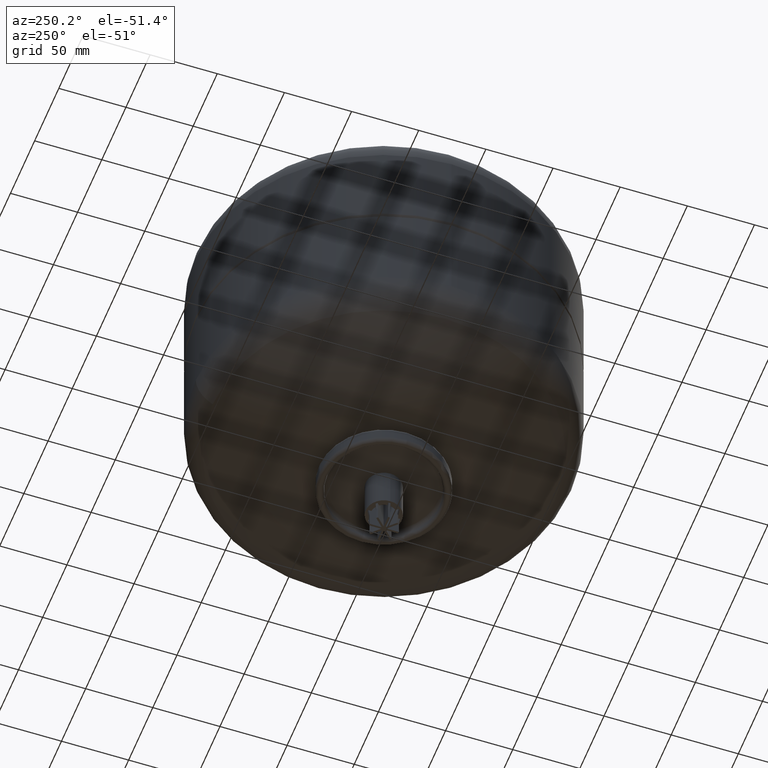
[diagram: clean part render]
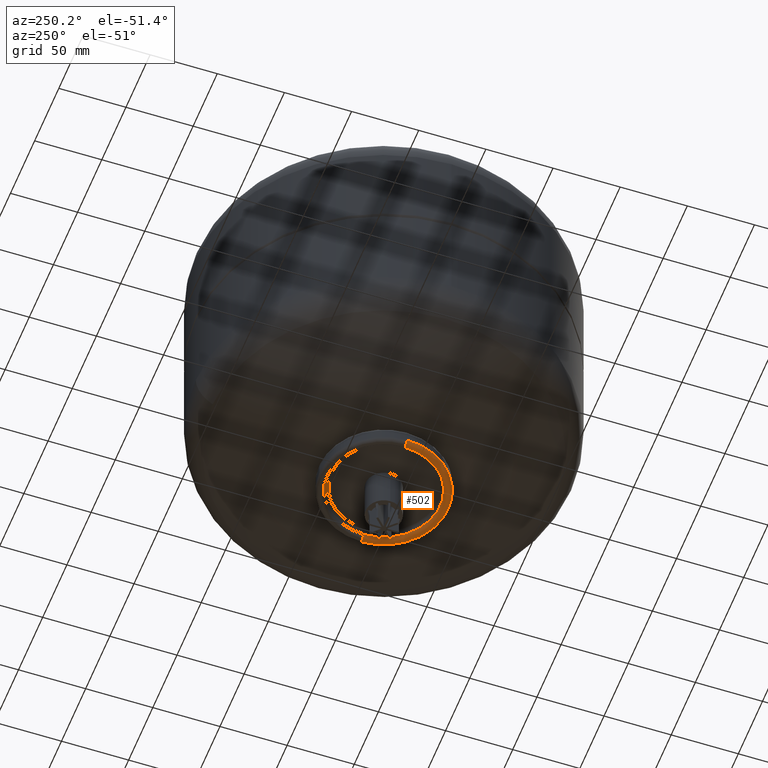
[diagram: same view with one face highlighted and labeled with its STEP entity id]
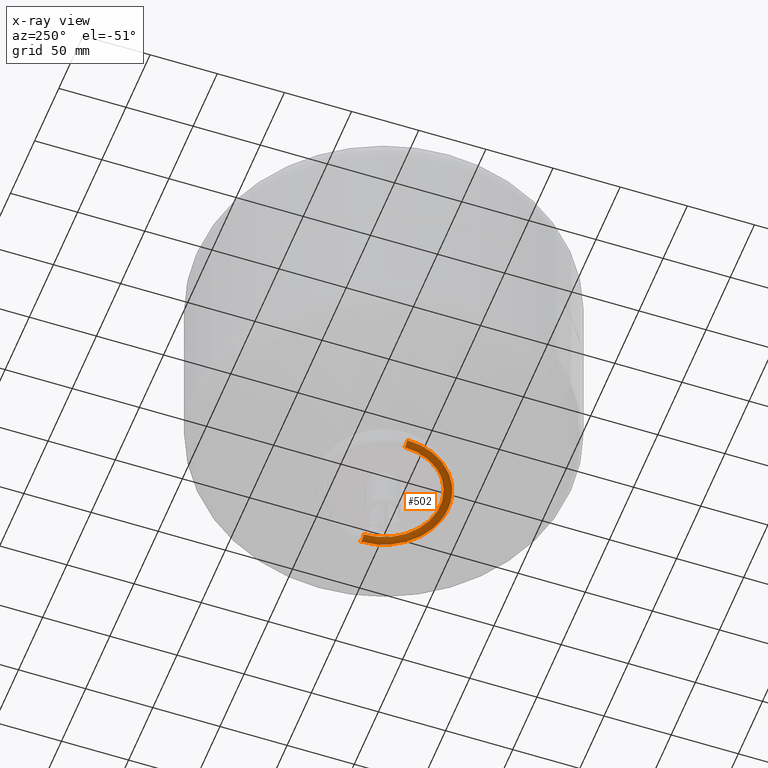
[diagram: x-ray of the same camera — body ghosted, the highlighted face saturated]
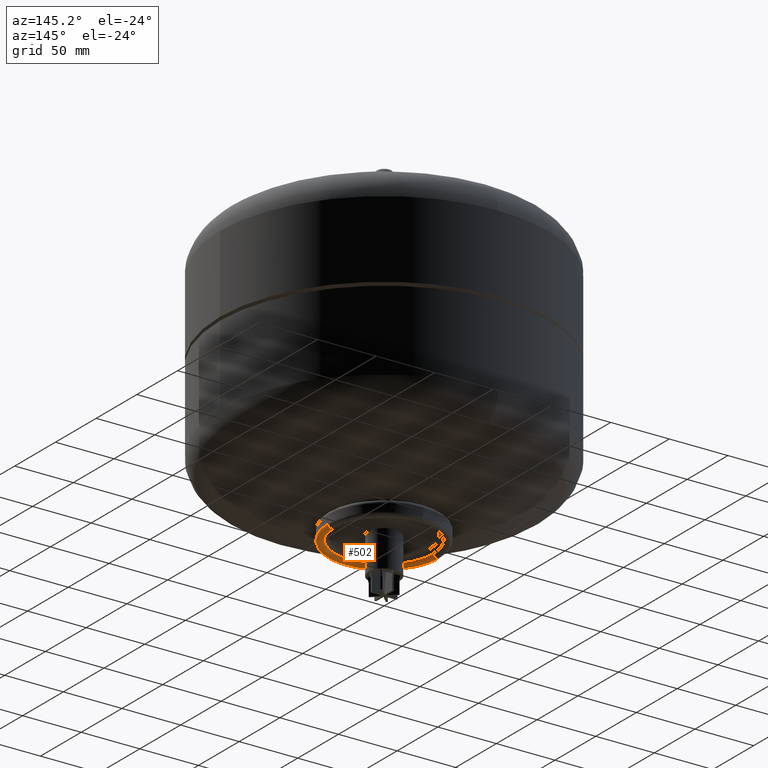
[diagram: same view with one face highlighted and labeled with its STEP entity id]
A machine part, auxiliary view. The second image highlights one B-rep face of the part: STEP entity #502.
The next image is the same camera in x-ray: the body ghosted, the highlighted face saturated — about 0% of this face is hidden behind the body in this view.
A second angle (auxiliary view) of the same face is appended — the face is thin or edge-on in the first view.
In plain terms, the highlighted toroidal blend (fillet) surface has major radius 45 mm and minor (blend) radius 3 mm.
Its self-contained STEP definition (entity closure, byte-faithful):
#140=CARTESIAN_POINT('',(-48.000000000000007,0.0,43.0));
#141=VERTEX_POINT('',#140);
#149=CARTESIAN_POINT('',(-5.878110E-015,-48.000000000000007,43.0));
#150=VERTEX_POINT('',#149);
#151=CARTESIAN_POINT('',(0.0,0.0,43.0));
#152=DIRECTION('',(0.0,0.0,-1.0));
#153=DIRECTION('',(0.0,1.0,0.0));
#154=AXIS2_PLACEMENT_3D('',#151,#152,#153);
#155=CIRCLE('',#154,48.000000000000007);
#156=EDGE_CURVE('',#150,#141,#155,.T.);
#407=CARTESIAN_POINT('',(-42.000000000000014,0.0,43.0));
#408=VERTEX_POINT('',#407);
#427=CARTESIAN_POINT('',(42.000000000000014,-5.143347E-015,43.0));
#428=VERTEX_POINT('',#427);
#464=CARTESIAN_POINT('',(0.0,0.0,43.0));
#465=DIRECTION('',(0.0,-1.045403E-016,-1.0));
#466=DIRECTION('',(-1.0,0.0,0.0));
#467=AXIS2_PLACEMENT_3D('',#464,#465,#466);
#468=TOROIDAL_SURFACE('',#467,45.000000000000007,3.000000000000000);
#469=CARTESIAN_POINT('',(-45.000000000000007,0.0,43.0));
#470=DIRECTION('',(0.0,1.0,0.0));
#471=DIRECTION('',(-1.0,0.0,0.0));
#472=AXIS2_PLACEMENT_3D('',#469,#470,#471);
#473=CIRCLE('',#472,3.000000000000000);
#474=EDGE_CURVE('',#408,#141,#473,.T.);
#475=ORIENTED_EDGE('',*,*,#474,.F.);
#476=CARTESIAN_POINT('',(0.0,0.0,43.0));
#477=DIRECTION('',(0.0,0.0,-1.0));
#478=DIRECTION('',(0.0,1.0,0.0));
#479=AXIS2_PLACEMENT_3D('',#476,#477,#478);
#480=CIRCLE('',#479,42.000000000000014);
#481=EDGE_CURVE('',#428,#408,#480,.T.);
#482=ORIENTED_EDGE('',*,*,#481,.F.);
#483=CARTESIAN_POINT('',(48.000000000000007,-5.878110E-015,43.0));
#484=VERTEX_POINT('',#483);
#485=CARTESIAN_POINT('',(45.000000000000007,-5.510729E-015,43.0));
#486=DIRECTION('',(0.0,-1.0,0.0));
#487=DIRECTION('',(1.0,0.0,0.0));
#488=AXIS2_PLACEMENT_3D('',#485,#486,#487);
#489=CIRCLE('',#488,3.000000000000000);
#490=EDGE_CURVE('',#428,#484,#489,.T.);
#491=ORIENTED_EDGE('',*,*,#490,.T.);
#492=CARTESIAN_POINT('',(0.0,0.0,43.0));
#493=DIRECTION('',(0.0,0.0,-1.0));
#494=DIRECTION('',(0.0,1.0,0.0));
#495=AXIS2_PLACEMENT_3D('',#492,#493,#494);
#496=CIRCLE('',#495,48.000000000000007);
#497=EDGE_CURVE('',#484,#150,#496,.T.);
#498=ORIENTED_EDGE('',*,*,#497,.T.);
#499=ORIENTED_EDGE('',*,*,#156,.T.);
#500=EDGE_LOOP('',(#475,#482,#491,#498,#499));
#501=FACE_OUTER_BOUND('',#500,.T.);
#502=ADVANCED_FACE('',(#501),#468,.T.);